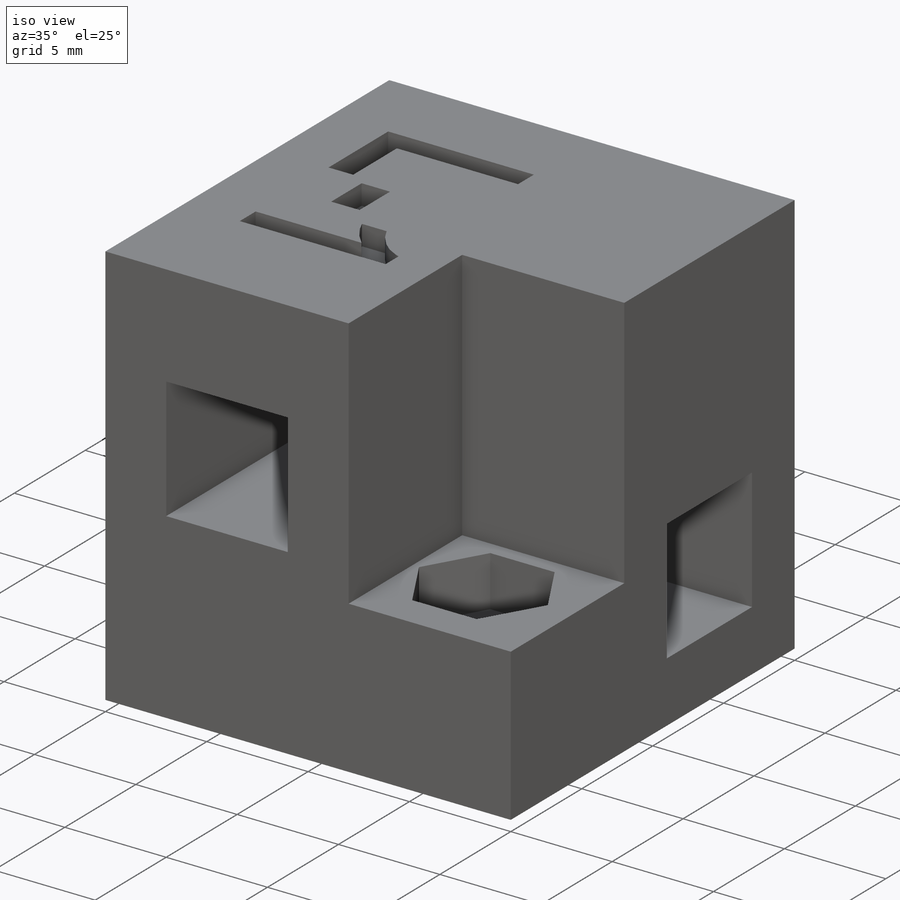
[diagram: iso view]
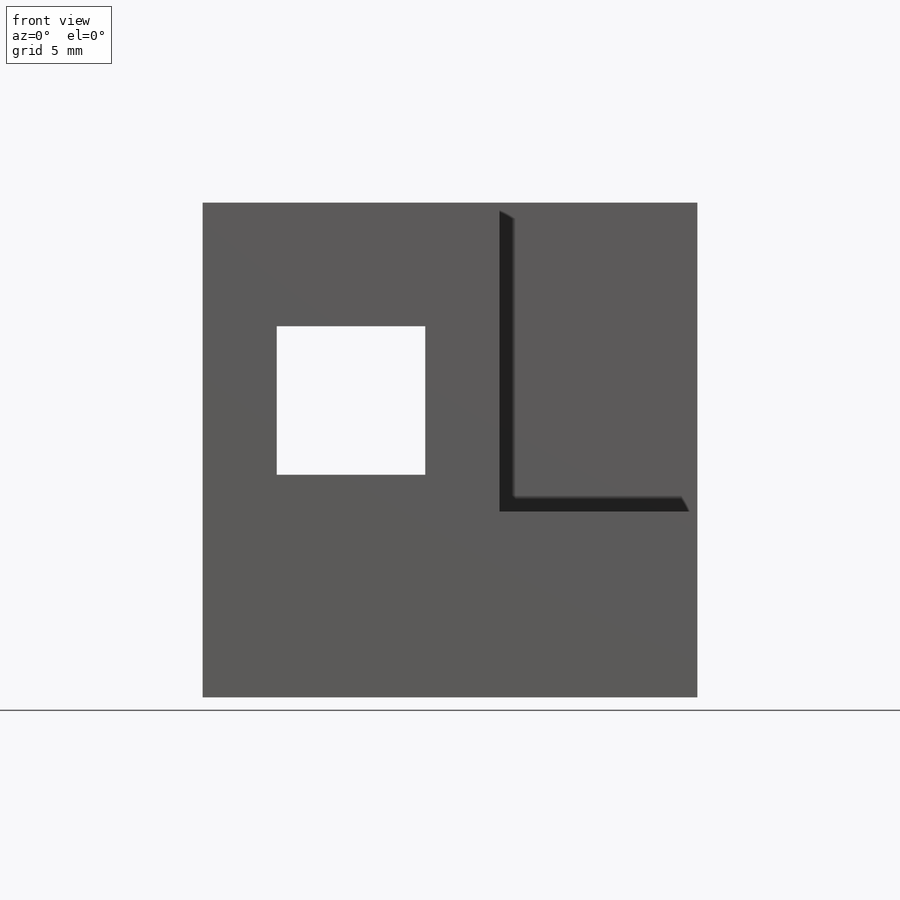
[diagram: front view]
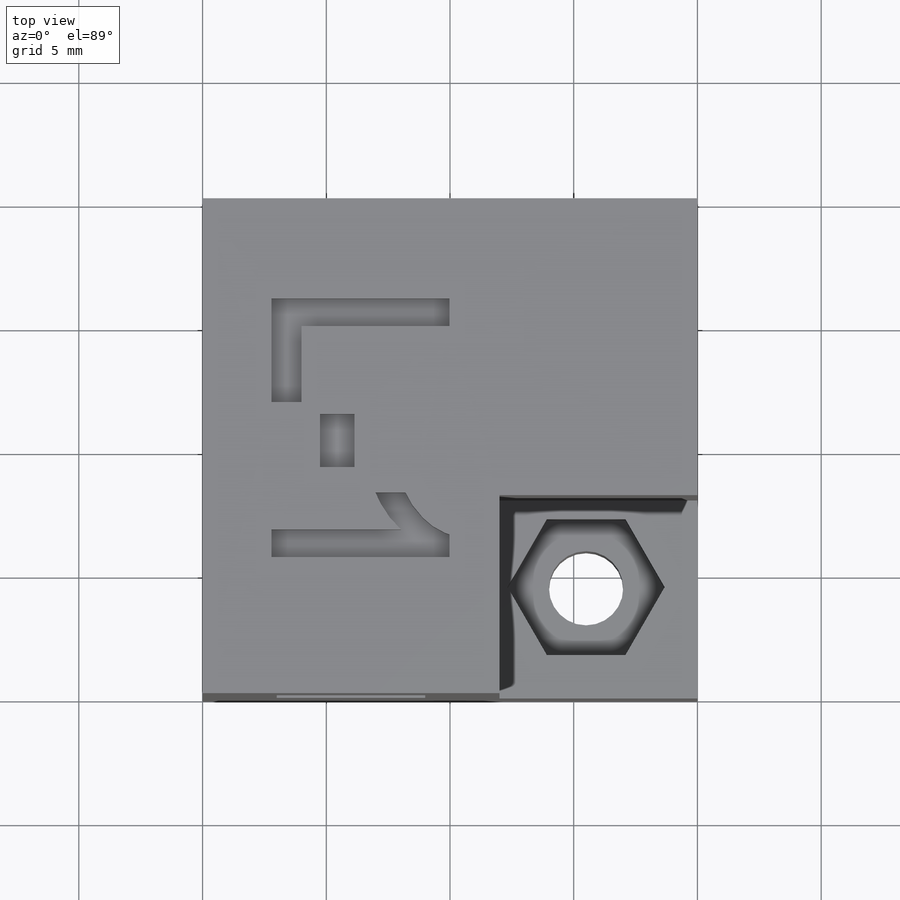
[diagram: top view]
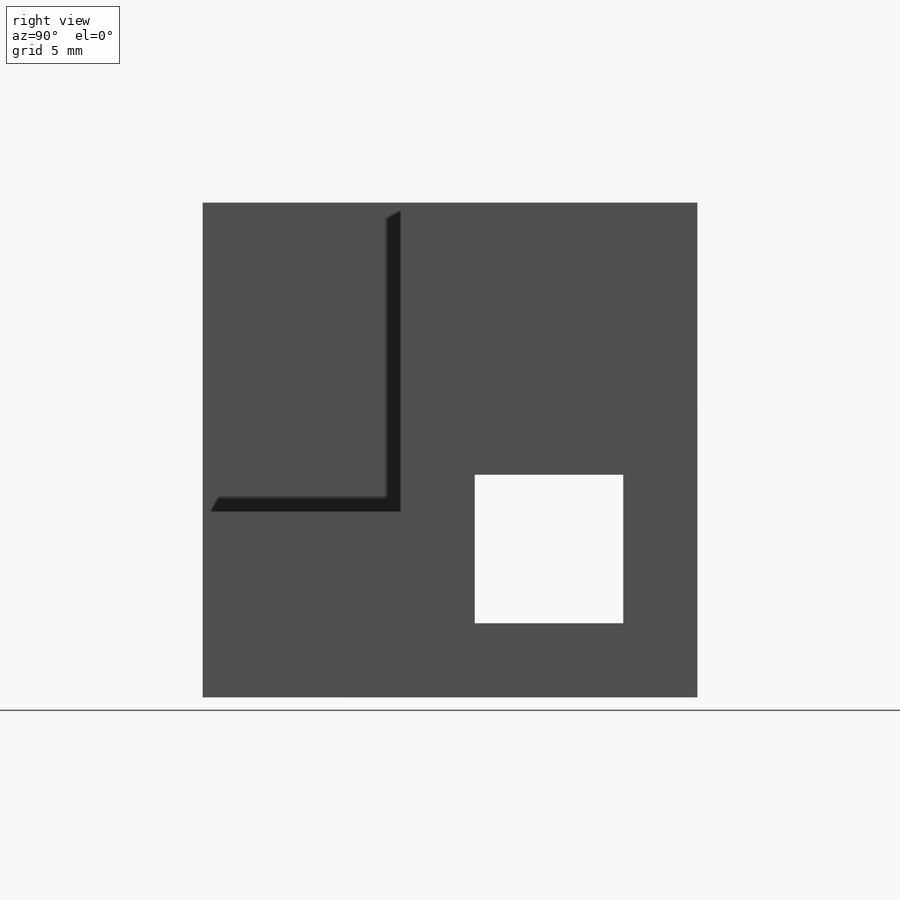
[diagram: right view]
SOLIDWORKS PART (.sldprt)
format: sldprt  version: not decoded by parser v0  size: 1,116,672 bytes
history: native  units: mm
features: sketch x10, cut_extrude x8, plane x3, extrude x2, mirror x2, material x1, move_body x1 (+13 scaffold rows collapsed; 1 parser-record rows omitted)
feature tree (41):
  scaffold x13  (default folders/planes/origin — collapsed)
  material  "Material <não especificado>"
  plane  "Plano frontal"
  plane  "Plano superior"
  plane  "Plano direito"
  sketch  "Esboço1"  dims[D1=20.0mm D2=20.0mm D3=12.0mm D4=12.0mm]
  extrude  "Ressalto-extrusão1"  Depth=20mm
  sketch  "Esboço2"  dims[D1=3.0mm D2=6.0mm D3=6.0mm D4=3.0mm]
  cut_extrude  "Corte-extrusão1"  Depth=20mm
  sketch  "Esboço3"  dims[D1=6.0mm D2=6.0mm D3=3.0mm D4=9.0mm D5=4.5mm]
  cut_extrude  "Corte-extrusão2"  Depth=20mm
  extrude  "Ressalto-extrusão2"  [1 undecoded]
  sketch  "Esboço1<3>"  dims[D1=7.5mm]
  sketch  "Esboço4"  dims[D1=5.5mm D4=3.0mm D2=4.5mm D3=4.5mm]
  cut_extrude  "Corte-extrusão3"  Depth=2.5mm
  cut_extrude  "Corte-extrusão4"  [1 undecoded]
  sketch  "Esboço4<3>"
  sketch  "Esboço6"
  cut_extrude  "R1"  Depth=1mm
  mirror  "Espelhar1"
  sketch  "Esboço7"
  cut_extrude  "Corte-extrusão5"  Depth=1mm
  mirror  "Espelhar2"
  sketch  "Esboço8"
  cut_extrude  "Corte-extrusão6"  Depth=1mm
  sketch  "Esboço9"
  cut_extrude  "Corte-extrusão7"  Depth=25mm
  parser-record x1  (decoder bookkeeping rows leaked as tree rows — omitted from the tree; the rows remain in map.json)
  move_body  "Corpo-Mover/Copiar1"
decode coverage: 13 of 23 modeling features carry decoded parameters
note: 2 parameter values undecoded
note: suppression state not decoded; provenance and decode notes live in map.json
